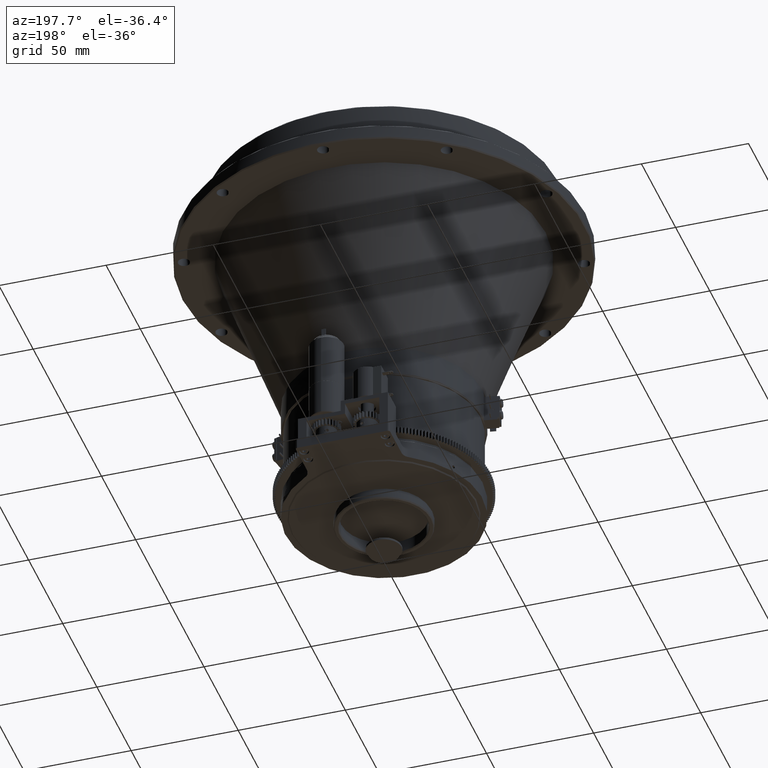
[diagram: clean part render]
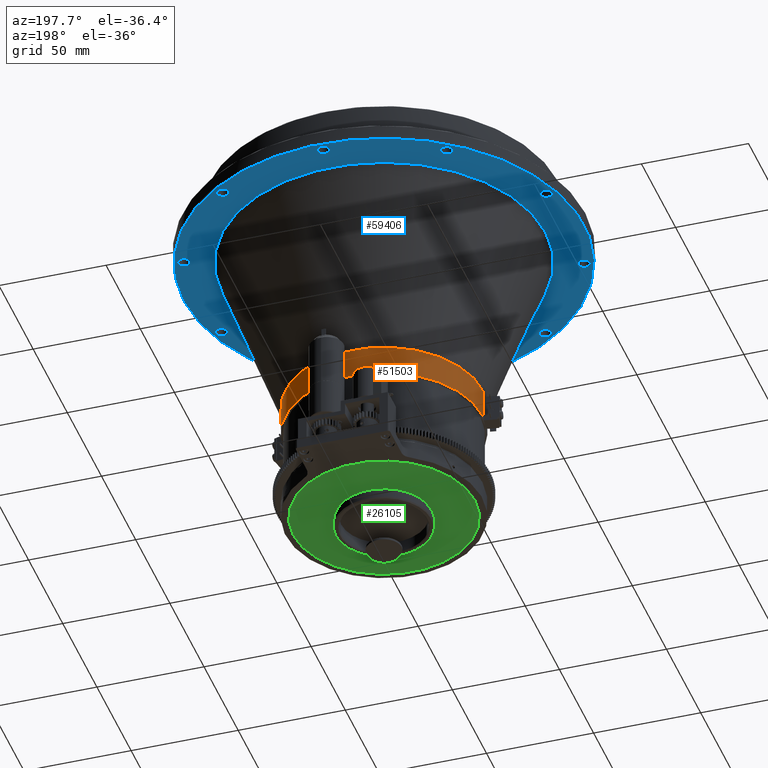
[diagram: same view with three faces highlighted in distinct colors, each labeled with its STEP entity id]
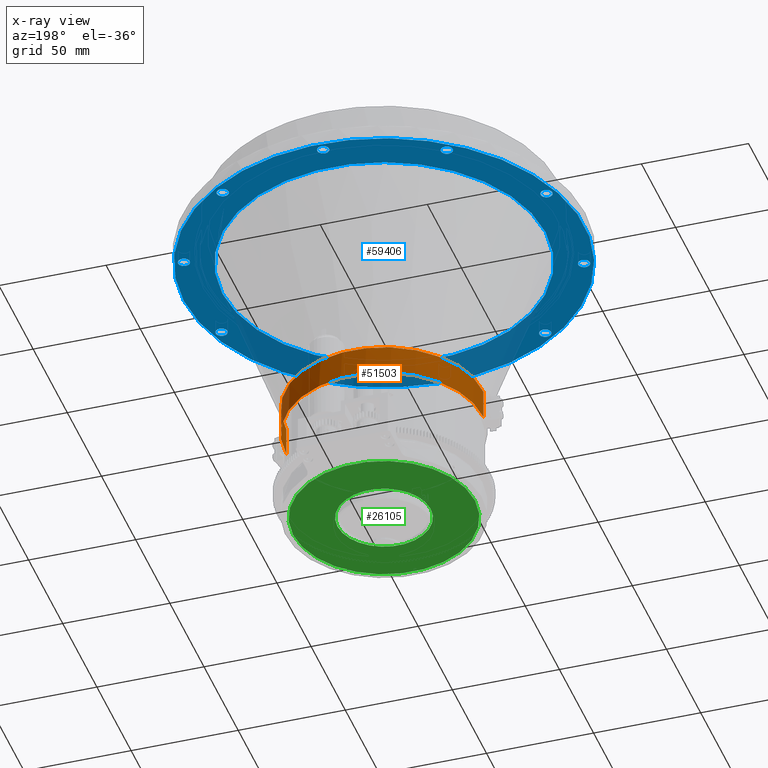
[diagram: x-ray of the same camera — body ghosted, the three highlighted faces saturated]
A machine part, auxiliary view with three faces highlighted in distinct colors.
The next image is the same camera in x-ray (body ghosted, the three faces saturated) — at least one of them is partly hidden behind the body in this view.
Their STEP definitions:

[orange] entity #51503 — the highlighted cylindrical surface (partial cylindrical patch) has radius 46 mm, axis along (0, 0, 1).
#3233 = CARTESIAN_POINT ( 'NONE',  ( -45.98328726538959899, -1.239875908573030205, -119.4593485126813874 ) ) ;
#7777 = FACE_OUTER_BOUND ( 'NONE', #105213, .T. ) ;
#9788 = CARTESIAN_POINT ( 'NONE',  ( 0.000000000000000000, 0.000000000000000000, -105.4593485126813732 ) ) ;
#16791 = EDGE_CURVE ( 'NONE', #111671, #60902, #76594, .T. ) ;
#18401 = CARTESIAN_POINT ( 'NONE',  ( -45.98328726538959899, -1.239875908573034202, -105.4593485126813732 ) ) ;
#19602 = LINE ( 'NONE', #18401, #80105 ) ;
#29212 = DIRECTION ( 'NONE',  ( -0.000000000000000000, -0.000000000000000000, -1.000000000000000000 ) ) ;
#34853 = AXIS2_PLACEMENT_3D ( 'NONE', #9788, #90743, #100336 ) ;
#35152 = DIRECTION ( 'NONE',  ( 0.000000000000000000, 0.000000000000000000, 1.000000000000000000 ) ) ;
#41368 = CARTESIAN_POINT ( 'NONE',  ( 45.98328726538958477, -1.239875908573065066, -105.4593485126813732 ) ) ;
#43147 = CYLINDRICAL_SURFACE ( 'NONE', #76340, 46.00000000000000000 ) ;
#45080 = VECTOR ( 'NONE', #29212, 1000.000000000000000 ) ;
#46193 = ORIENTED_EDGE ( 'NONE', *, *, #94671, .T. ) ;
#46578 = DIRECTION ( 'NONE',  ( 0.000000000000000000, -0.000000000000000000, -1.000000000000000000 ) ) ;
#50590 = ORIENTED_EDGE ( 'NONE', *, *, #89133, .F. ) ;
#51503 = ADVANCED_FACE ( 'NONE', ( #7777 ), #43147, .T. ) ;
#52054 = ORIENTED_EDGE ( 'NONE', *, *, #16791, .T. ) ;
#60902 = VERTEX_POINT ( 'NONE', #3233 ) ;
#61715 = DIRECTION ( 'NONE',  ( 1.000000000000000000, 0.000000000000000000, 0.000000000000000000 ) ) ;
#66394 = VERTEX_POINT ( 'NONE', #41368 ) ;
#68858 = AXIS2_PLACEMENT_3D ( 'NONE', #117248, #35152, #71727 ) ;
#70453 = CARTESIAN_POINT ( 'NONE',  ( -45.98328726538958477, -1.239875908573087049, -105.4593485126813732 ) ) ;
#71727 = DIRECTION ( 'NONE',  ( 1.000000000000000000, 0.000000000000000000, 0.000000000000000000 ) ) ;
#73600 = CARTESIAN_POINT ( 'NONE',  ( 45.98328726538959899, -1.239875908573036201, -105.4593485126813732 ) ) ;
#74567 = EDGE_CURVE ( 'NONE', #87504, #60902, #19602, .T. ) ;
#74800 = LINE ( 'NONE', #73600, #45080 ) ;
#76340 = AXIS2_PLACEMENT_3D ( 'NONE', #78547, #107284, #61715 ) ;
#76594 = CIRCLE ( 'NONE', #68858, 46.00000000000000000 ) ;
#78547 = CARTESIAN_POINT ( 'NONE',  ( 0.000000000000000000, 0.000000000000000000, 4.890681915448697126 ) ) ;
#80105 = VECTOR ( 'NONE', #46578, 1000.000000000000000 ) ;
#86535 = CIRCLE ( 'NONE', #34853, 45.99999999999999289 ) ;
#87504 = VERTEX_POINT ( 'NONE', #70453 ) ;
#89133 = EDGE_CURVE ( 'NONE', #66394, #87504, #86535, .T. ) ;
#90743 = DIRECTION ( 'NONE',  ( 0.000000000000000000, 0.000000000000000000, 1.000000000000000000 ) ) ;
#94671 = EDGE_CURVE ( 'NONE', #66394, #111671, #74800, .T. ) ;
#100336 = DIRECTION ( 'NONE',  ( 1.000000000000000000, 0.000000000000000000, 0.000000000000000000 ) ) ;
#105213 = EDGE_LOOP ( 'NONE', ( #50590, #46193, #52054, #105737 ) ) ;
#105737 = ORIENTED_EDGE ( 'NONE', *, *, #74567, .F. ) ;
#107284 = DIRECTION ( 'NONE',  ( 0.000000000000000000, 0.000000000000000000, 1.000000000000000000 ) ) ;
#109884 = CARTESIAN_POINT ( 'NONE',  ( 45.98328726538959188, -1.239875908573071950, -119.4593485126813874 ) ) ;
#111671 = VERTEX_POINT ( 'NONE', #109884 ) ;
#117248 = CARTESIAN_POINT ( 'NONE',  ( 0.000000000000000000, 0.000000000000000000, -119.4593485126814016 ) ) ;

[blue] entity #59406 — the highlighted planar face has unit normal (0, 0, 1).
#490 = ORIENTED_EDGE ( 'NONE', *, *, #116149, .F. ) ;
#744 = EDGE_LOOP ( 'NONE', ( #95552 ) ) ;
#2287 = EDGE_CURVE ( 'NONE', #111721, #111721, #20610, .T. ) ;
#2727 = DIRECTION ( 'NONE',  ( -0.000000000000000000, -0.000000000000000000, -1.000000000000000000 ) ) ;
#3680 = CIRCLE ( 'NONE', #14981, 2.750000000000002665 ) ;
#3952 = VERTEX_POINT ( 'NONE', #83741 ) ;
#4952 = CARTESIAN_POINT ( 'NONE',  ( 2.750000000000002665, -89.00000000000000000, -24.95934851268139454 ) ) ;
#5554 = VERTEX_POINT ( 'NONE', #4952 ) ;
#6046 = DIRECTION ( 'NONE',  ( 1.000000000000000000, 0.000000000000000000, 0.000000000000000000 ) ) ;
#7388 = EDGE_LOOP ( 'NONE', ( #77686 ) ) ;
#8516 = VERTEX_POINT ( 'NONE', #107435 ) ;
#9797 = EDGE_LOOP ( 'NONE', ( #490 ) ) ;
#12463 = EDGE_CURVE ( 'NONE', #5554, #5554, #51147, .T. ) ;
#13287 = EDGE_LOOP ( 'NONE', ( #69958 ) ) ;
#14981 = AXIS2_PLACEMENT_3D ( 'NONE', #108920, #26806, #45376 ) ;
#16229 = AXIS2_PLACEMENT_3D ( 'NONE', #76933, #102736, #94929 ) ;
#16324 = FACE_BOUND ( 'NONE', #7388, .T. ) ;
#18389 = EDGE_CURVE ( 'NONE', #113463, #113463, #56461, .T. ) ;
#18410 = EDGE_CURVE ( 'NONE', #77504, #77504, #102430, .T. ) ;
#20610 = CIRCLE ( 'NONE', #87581, 2.750000000000002665 ) ;
#22980 = DIRECTION ( 'NONE',  ( -0.000000000000000000, -0.000000000000000000, -1.000000000000000000 ) ) ;
#23561 = CARTESIAN_POINT ( 'NONE',  ( -52.31288745402969909, -72.00251249937062425, -24.95934851268139454 ) ) ;
#23823 = CARTESIAN_POINT ( 'NONE',  ( 87.39402995026836152, 27.50251249937128506, -24.95934851268139454 ) ) ;
#24732 = PLANE ( 'NONE',  #41556 ) ;
#24843 = EDGE_LOOP ( 'NONE', ( #39098 ) ) ;
#25911 = FACE_BOUND ( 'NONE', #73337, .T. ) ;
#26806 = DIRECTION ( 'NONE',  ( -0.000000000000000000, -0.000000000000000000, -1.000000000000000000 ) ) ;
#27507 = CARTESIAN_POINT ( 'NONE',  ( 52.31288745403073648, -72.00251249936985687, -24.95934851268139454 ) ) ;
#28018 = EDGE_LOOP ( 'NONE', ( #59135 ) ) ;
#28094 = EDGE_CURVE ( 'NONE', #8516, #8516, #97931, .T. ) ;
#29560 = AXIS2_PLACEMENT_3D ( 'NONE', #88807, #45025, #101366 ) ;
#32076 = VERTEX_POINT ( 'NONE', #78855 ) ;
#33699 = FACE_OUTER_BOUND ( 'NONE', #40769, .T. ) ;
#35782 = CARTESIAN_POINT ( 'NONE',  ( 75.50000000000001421, 0.000000000000000000, -24.95934851268139099 ) ) ;
#37410 = CARTESIAN_POINT ( 'NONE',  ( 55.06288745402915907, 72.00251249937100795, -24.95934851268139454 ) ) ;
#38057 = EDGE_LOOP ( 'NONE', ( #86209 ) ) ;
#38229 = AXIS2_PLACEMENT_3D ( 'NONE', #69066, #70233, #106803 ) ;
#38620 = DIRECTION ( 'NONE',  ( -0.000000000000000000, -0.000000000000000000, -1.000000000000000000 ) ) ;
#39098 = ORIENTED_EDGE ( 'NONE', *, *, #78312, .F. ) ;
#40769 = EDGE_LOOP ( 'NONE', ( #83885 ) ) ;
#41046 = ORIENTED_EDGE ( 'NONE', *, *, #85334, .F. ) ;
#41556 = AXIS2_PLACEMENT_3D ( 'NONE', #61292, #97892, #96689 ) ;
#42147 = FACE_BOUND ( 'NONE', #13287, .T. ) ;
#42648 = ORIENTED_EDGE ( 'NONE', *, *, #62429, .F. ) ;
#43602 = VERTEX_POINT ( 'NONE', #51984 ) ;
#43917 = FACE_BOUND ( 'NONE', #67393, .T. ) ;
#45025 = DIRECTION ( 'NONE',  ( 0.000000000000000000, -0.000000000000000000, 1.000000000000000000 ) ) ;
#45376 = DIRECTION ( 'NONE',  ( 1.000000000000000000, 0.000000000000000000, 0.000000000000000000 ) ) ;
#47606 = CARTESIAN_POINT ( 'NONE',  ( 84.64402995026892995, -27.50251249936951226, -24.95934851268139454 ) ) ;
#48769 = FACE_BOUND ( 'NONE', #24843, .T. ) ;
#49704 = CARTESIAN_POINT ( 'NONE',  ( 0.000000000000000000, 0.000000000000000000, -24.95934851268139099 ) ) ;
#50794 = VERTEX_POINT ( 'NONE', #23823 ) ;
#51147 = CIRCLE ( 'NONE', #100916, 2.750000000000002665 ) ;
#51984 = CARTESIAN_POINT ( 'NONE',  ( 55.06288745403074358, -72.00251249936985687, -24.95934851268139454 ) ) ;
#52299 = FACE_BOUND ( 'NONE', #81408, .T. ) ;
#52591 = AXIS2_PLACEMENT_3D ( 'NONE', #47606, #38620, #113470 ) ;
#56461 = CIRCLE ( 'NONE', #52591, 2.750000000000002665 ) ;
#57979 = EDGE_CURVE ( 'NONE', #43602, #43602, #103016, .T. ) ;
#59135 = ORIENTED_EDGE ( 'NONE', *, *, #18410, .F. ) ;
#59406 = ADVANCED_FACE ( 'NONE', ( #48769, #52299, #108032, #42147, #70280, #106847, #16324, #43917, #87087, #25911, #78709, #33699 ), #24732, .F. ) ;
#60107 = DIRECTION ( 'NONE',  ( 1.000000000000000000, 0.000000000000000000, 0.000000000000000000 ) ) ;
#60158 = CIRCLE ( 'NONE', #29560, 93.50000000000000000 ) ;
#61292 = CARTESIAN_POINT ( 'NONE',  ( 0.000000000000000000, 94.00000000000000000, -24.95934851268139454 ) ) ;
#61546 = CARTESIAN_POINT ( 'NONE',  ( -84.64402995026875942, 27.50251249937008424, -24.95934851268139454 ) ) ;
#62429 = EDGE_CURVE ( 'NONE', #50794, #50794, #74543, .T. ) ;
#63047 = AXIS2_PLACEMENT_3D ( 'NONE', #108505, #98376, #6046 ) ;
#63303 = DIRECTION ( 'NONE',  ( -0.000000000000000000, 0.000000000000000000, -1.000000000000000000 ) ) ;
#65850 = DIRECTION ( 'NONE',  ( 1.000000000000000000, 0.000000000000000000, 0.000000000000000000 ) ) ;
#67393 = EDGE_LOOP ( 'NONE', ( #114793 ) ) ;
#69066 = CARTESIAN_POINT ( 'NONE',  ( 1.224646799147365780E-16, 89.00000000000000000, -24.95934851268139454 ) ) ;
#69958 = ORIENTED_EDGE ( 'NONE', *, *, #28094, .F. ) ;
#70233 = DIRECTION ( 'NONE',  ( -0.000000000000000000, -0.000000000000000000, -1.000000000000000000 ) ) ;
#70280 = FACE_BOUND ( 'NONE', #38057, .T. ) ;
#72566 = AXIS2_PLACEMENT_3D ( 'NONE', #23561, #22980, #60107 ) ;
#73337 = EDGE_LOOP ( 'NONE', ( #42648 ) ) ;
#73556 = VERTEX_POINT ( 'NONE', #110702 ) ;
#73640 = DIRECTION ( 'NONE',  ( 1.000000000000000000, 0.000000000000000000, 0.000000000000000000 ) ) ;
#73868 = EDGE_CURVE ( 'NONE', #73556, #73556, #3680, .T. ) ;
#74543 = CIRCLE ( 'NONE', #63047, 2.750000000000002665 ) ;
#76933 = CARTESIAN_POINT ( 'NONE',  ( -52.31288745403021778, 72.00251249937025477, -24.95934851268139454 ) ) ;
#77504 = VERTEX_POINT ( 'NONE', #87076 ) ;
#77686 = ORIENTED_EDGE ( 'NONE', *, *, #12463, .F. ) ;
#78312 = EDGE_CURVE ( 'NONE', #100536, #100536, #89403, .T. ) ;
#78709 = FACE_BOUND ( 'NONE', #106015, .T. ) ;
#78855 = CARTESIAN_POINT ( 'NONE',  ( -49.56288745402969909, -72.00251249937062425, -24.95934851268139454 ) ) ;
#80155 = DIRECTION ( 'NONE',  ( -0.000000000000000000, -0.000000000000000000, -1.000000000000000000 ) ) ;
#80170 = CIRCLE ( 'NONE', #72566, 2.750000000000002665 ) ;
#80351 = DIRECTION ( 'NONE',  ( 1.000000000000000000, 0.000000000000000000, 0.000000000000000000 ) ) ;
#81408 = EDGE_LOOP ( 'NONE', ( #41046 ) ) ;
#83149 = CARTESIAN_POINT ( 'NONE',  ( 2.750000000000002665, 89.00000000000000000, -24.95934851268139454 ) ) ;
#83741 = CARTESIAN_POINT ( 'NONE',  ( 93.50000000000000000, 0.000000000000000000, -24.95934851268139099 ) ) ;
#83885 = ORIENTED_EDGE ( 'NONE', *, *, #92295, .F. ) ;
#85334 = EDGE_CURVE ( 'NONE', #90954, #90954, #91884, .T. ) ;
#86209 = ORIENTED_EDGE ( 'NONE', *, *, #73868, .F. ) ;
#86443 = AXIS2_PLACEMENT_3D ( 'NONE', #61546, #80155, #98154 ) ;
#87076 = CARTESIAN_POINT ( 'NONE',  ( -49.56288745403021778, 72.00251249937025477, -24.95934851268139454 ) ) ;
#87087 = FACE_BOUND ( 'NONE', #744, .T. ) ;
#87581 = AXIS2_PLACEMENT_3D ( 'NONE', #97754, #88740, #80351 ) ;
#88740 = DIRECTION ( 'NONE',  ( -0.000000000000000000, -0.000000000000000000, -1.000000000000000000 ) ) ;
#88807 = CARTESIAN_POINT ( 'NONE',  ( 0.000000000000000000, 0.000000000000000000, -24.95934851268139099 ) ) ;
#89403 = CIRCLE ( 'NONE', #108549, 75.50000000000001421 ) ;
#89597 = AXIS2_PLACEMENT_3D ( 'NONE', #27507, #118600, #65850 ) ;
#90954 = VERTEX_POINT ( 'NONE', #83149 ) ;
#91182 = ORIENTED_EDGE ( 'NONE', *, *, #2287, .F. ) ;
#91629 = CARTESIAN_POINT ( 'NONE',  ( -1.224646799147365780E-16, -89.00000000000000000, -24.95934851268139454 ) ) ;
#91884 = CIRCLE ( 'NONE', #38229, 2.750000000000002665 ) ;
#92295 = EDGE_CURVE ( 'NONE', #3952, #3952, #60158, .T. ) ;
#94929 = DIRECTION ( 'NONE',  ( 1.000000000000000000, 0.000000000000000000, 0.000000000000000000 ) ) ;
#95552 = ORIENTED_EDGE ( 'NONE', *, *, #18389, .F. ) ;
#96689 = DIRECTION ( 'NONE',  ( 1.000000000000000000, 0.000000000000000000, -0.000000000000000000 ) ) ;
#97754 = CARTESIAN_POINT ( 'NONE',  ( 52.31288745402915907, 72.00251249937100795, -24.95934851268139454 ) ) ;
#97892 = DIRECTION ( 'NONE',  ( 0.000000000000000000, 0.000000000000000000, 1.000000000000000000 ) ) ;
#97931 = CIRCLE ( 'NONE', #86443, 2.750000000000002665 ) ;
#98154 = DIRECTION ( 'NONE',  ( 1.000000000000000000, 0.000000000000000000, 0.000000000000000000 ) ) ;
#98376 = DIRECTION ( 'NONE',  ( -0.000000000000000000, -0.000000000000000000, -1.000000000000000000 ) ) ;
#100536 = VERTEX_POINT ( 'NONE', #35782 ) ;
#100916 = AXIS2_PLACEMENT_3D ( 'NONE', #91629, #2727, #73640 ) ;
#101366 = DIRECTION ( 'NONE',  ( 1.000000000000000000, 0.000000000000000000, 0.000000000000000000 ) ) ;
#102430 = CIRCLE ( 'NONE', #16229, 2.750000000000002665 ) ;
#102736 = DIRECTION ( 'NONE',  ( -0.000000000000000000, -0.000000000000000000, -1.000000000000000000 ) ) ;
#103016 = CIRCLE ( 'NONE', #89597, 2.750000000000002665 ) ;
#106015 = EDGE_LOOP ( 'NONE', ( #91182 ) ) ;
#106246 = CARTESIAN_POINT ( 'NONE',  ( 87.39402995026892995, -27.50251249936951226, -24.95934851268139454 ) ) ;
#106803 = DIRECTION ( 'NONE',  ( 1.000000000000000000, 0.000000000000000000, 0.000000000000000000 ) ) ;
#106847 = FACE_BOUND ( 'NONE', #9797, .T. ) ;
#107435 = CARTESIAN_POINT ( 'NONE',  ( -81.89402995026875942, 27.50251249937008424, -24.95934851268139454 ) ) ;
#108032 = FACE_BOUND ( 'NONE', #28018, .T. ) ;
#108505 = CARTESIAN_POINT ( 'NONE',  ( 84.64402995026836152, 27.50251249937128506, -24.95934851268139454 ) ) ;
#108549 = AXIS2_PLACEMENT_3D ( 'NONE', #49704, #63303, #117801 ) ;
#108920 = CARTESIAN_POINT ( 'NONE',  ( -84.64402995026857468, -27.50251249937069886, -24.95934851268139454 ) ) ;
#110702 = CARTESIAN_POINT ( 'NONE',  ( -81.89402995026857468, -27.50251249937069886, -24.95934851268139454 ) ) ;
#111721 = VERTEX_POINT ( 'NONE', #37410 ) ;
#113463 = VERTEX_POINT ( 'NONE', #106246 ) ;
#113470 = DIRECTION ( 'NONE',  ( 1.000000000000000000, 0.000000000000000000, 0.000000000000000000 ) ) ;
#114793 = ORIENTED_EDGE ( 'NONE', *, *, #57979, .F. ) ;
#116149 = EDGE_CURVE ( 'NONE', #32076, #32076, #80170, .T. ) ;
#117801 = DIRECTION ( 'NONE',  ( 1.000000000000000000, 0.000000000000000000, 0.000000000000000000 ) ) ;
#118600 = DIRECTION ( 'NONE',  ( -0.000000000000000000, -0.000000000000000000, -1.000000000000000000 ) ) ;

[green] entity #26105 — the highlighted planar face has unit normal (0, 0, 1).
#957 = DIRECTION ( 'NONE',  ( 0.000000000000000000, 0.000000000000000000, 1.000000000000000000 ) ) ;
#7256 = CARTESIAN_POINT ( 'NONE',  ( 0.000000000000000000, 0.000000000000000000, -165.7299995126814451 ) ) ;
#9361 = FACE_OUTER_BOUND ( 'NONE', #65112, .T. ) ;
#9900 = CARTESIAN_POINT ( 'NONE',  ( 0.000000000000000000, 0.000000000000000000, -165.7299995126814451 ) ) ;
#21416 = ORIENTED_EDGE ( 'NONE', *, *, #42418, .F. ) ;
#26105 = ADVANCED_FACE ( 'NONE', ( #111239, #9361 ), #45925, .F. ) ;
#28256 = AXIS2_PLACEMENT_3D ( 'NONE', #36921, #957, #83678 ) ;
#33612 = CIRCLE ( 'NONE', #98778, 42.49999999999998579 ) ;
#35941 = AXIS2_PLACEMENT_3D ( 'NONE', #9900, #44696, #72876 ) ;
#36921 = CARTESIAN_POINT ( 'NONE',  ( 0.000000000000000000, 21.75000000000000355, -165.7299995126814451 ) ) ;
#41456 = ORIENTED_EDGE ( 'NONE', *, *, #67924, .F. ) ;
#42418 = EDGE_CURVE ( 'NONE', #57027, #57027, #114379, .T. ) ;
#44696 = DIRECTION ( 'NONE',  ( -0.000000000000000000, -0.000000000000000000, -1.000000000000000000 ) ) ;
#45925 = PLANE ( 'NONE',  #28256 ) ;
#56430 = CARTESIAN_POINT ( 'NONE',  ( 21.75000000000000355, 0.000000000000000000, -165.7299995126814451 ) ) ;
#57027 = VERTEX_POINT ( 'NONE', #56430 ) ;
#61083 = EDGE_LOOP ( 'NONE', ( #21416 ) ) ;
#65112 = EDGE_LOOP ( 'NONE', ( #41456 ) ) ;
#67924 = EDGE_CURVE ( 'NONE', #79572, #79572, #33612, .T. ) ;
#71159 = CARTESIAN_POINT ( 'NONE',  ( 42.49999999999998579, 0.000000000000000000, -165.7299995126814451 ) ) ;
#72876 = DIRECTION ( 'NONE',  ( 1.000000000000000000, 0.000000000000000000, 0.000000000000000000 ) ) ;
#79572 = VERTEX_POINT ( 'NONE', #71159 ) ;
#83678 = DIRECTION ( 'NONE',  ( 1.000000000000000000, 0.000000000000000000, -0.000000000000000000 ) ) ;
#98778 = AXIS2_PLACEMENT_3D ( 'NONE', #7256, #109161, #100188 ) ;
#100188 = DIRECTION ( 'NONE',  ( 1.000000000000000000, 0.000000000000000000, 0.000000000000000000 ) ) ;
#109161 = DIRECTION ( 'NONE',  ( 0.000000000000000000, -0.000000000000000000, 1.000000000000000000 ) ) ;
#111239 = FACE_BOUND ( 'NONE', #61083, .T. ) ;
#114379 = CIRCLE ( 'NONE', #35941, 21.75000000000000355 ) ;